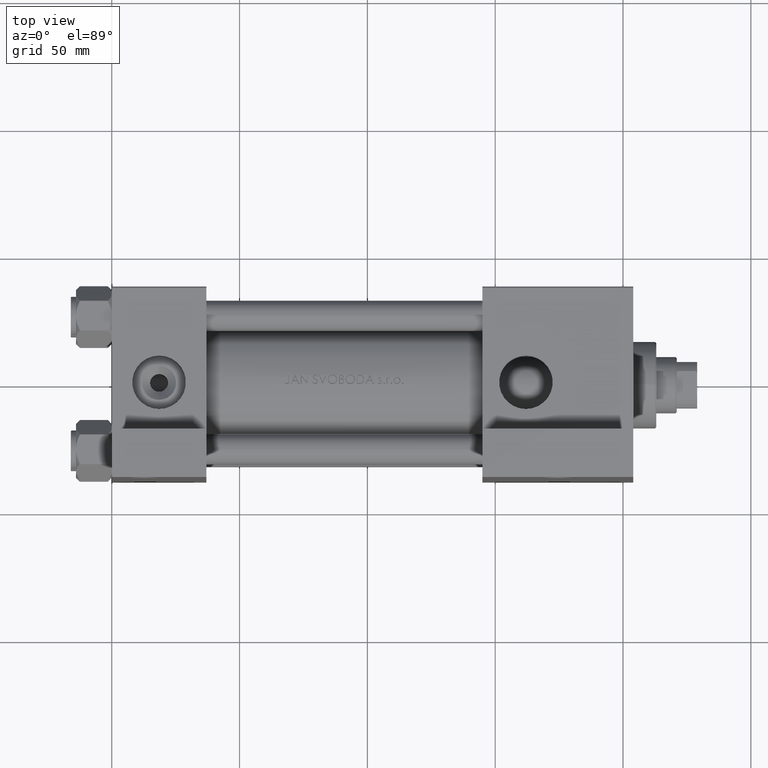
[diagram: clean part render]
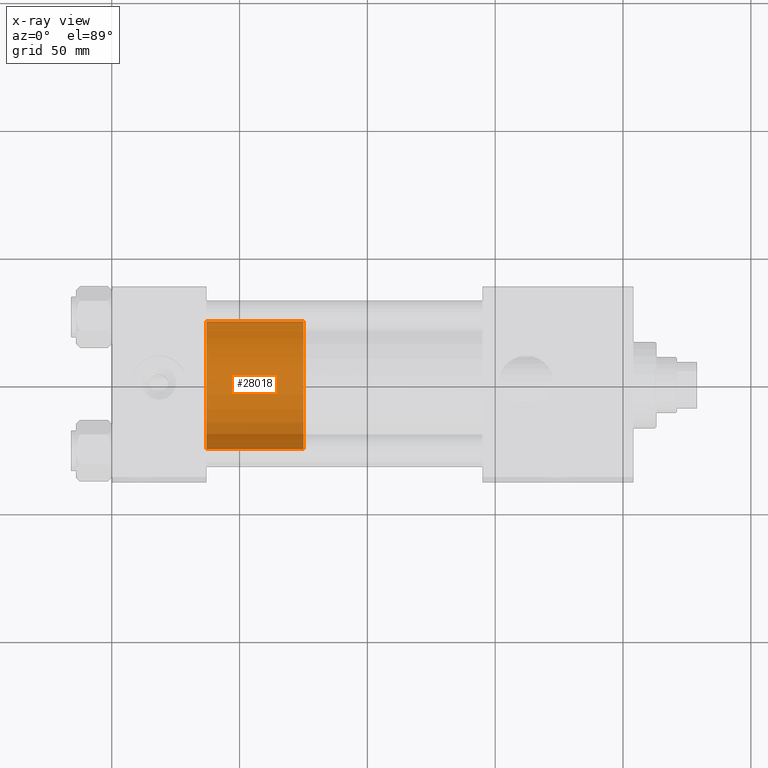
[diagram: x-ray — body ghosted, one internal face saturated and labeled with its STEP entity id]
A machine part, top view, then the same camera in x-ray: the body is ghosted and one INTERNAL B-rep face — a face not visible from any outside direction — is saturated and labeled: STEP entity #28018.
In plain terms, the highlighted cylindrical surface (partial cylindrical patch) has radius 25 mm, axis along (-1, 0, 0).
Its self-contained STEP definition (entity closure, byte-faithful):
#2746 = VECTOR ( 'NONE', #43093, 1000.000000000000000 ) ;
#2951 = VECTOR ( 'NONE', #17350, 1000.000000000000000 ) ;
#5581 = FACE_OUTER_BOUND ( 'NONE', #11995, .T. ) ;
#9056 = EDGE_CURVE ( 'NONE', #20496, #14916, #44815, .T. ) ;
#11995 = EDGE_LOOP ( 'NONE', ( #19832, #32396, #12977, #15417 ) ) ;
#12977 = ORIENTED_EDGE ( 'NONE', *, *, #25680, .T. ) ;
#13200 = DIRECTION ( 'NONE',  ( 1.000000000000000000, 0.000000000000000000, 0.000000000000000000 ) ) ;
#13305 = CYLINDRICAL_SURFACE ( 'NONE', #24323, 25.00000000000000000 ) ;
#14916 = VERTEX_POINT ( 'NONE', #42545 ) ;
#15417 = ORIENTED_EDGE ( 'NONE', *, *, #34772, .F. ) ;
#16328 = CIRCLE ( 'NONE', #40173, 25.00000000000000000 ) ;
#17288 = CARTESIAN_POINT ( 'NONE',  ( 0.000000000000000000, 0.000000000000000000, 38.00000000000000000 ) ) ;
#17350 = DIRECTION ( 'NONE',  ( -0.000000000000000000, -0.000000000000000000, -1.000000000000000000 ) ) ;
#17426 = VERTEX_POINT ( 'NONE', #23738 ) ;
#17819 = AXIS2_PLACEMENT_3D ( 'NONE', #33785, #41009, #30295 ) ;
#19832 = ORIENTED_EDGE ( 'NONE', *, *, #9056, .F. ) ;
#20496 = VERTEX_POINT ( 'NONE', #23366 ) ;
#20961 = LINE ( 'NONE', #38870, #2746 ) ;
#23366 = CARTESIAN_POINT ( 'NONE',  ( 25.00000000000000000, 3.061616997868383043E-15, 38.00000000000000000 ) ) ;
#23738 = CARTESIAN_POINT ( 'NONE',  ( -25.00000000000000000, 0.000000000000000000, 0.000000000000000000 ) ) ;
#24323 = AXIS2_PLACEMENT_3D ( 'NONE', #17288, #24983, #28467 ) ;
#24458 = EDGE_CURVE ( 'NONE', #20496, #44565, #20961, .T. ) ;
#24983 = DIRECTION ( 'NONE',  ( -0.000000000000000000, -0.000000000000000000, -1.000000000000000000 ) ) ;
#25680 = EDGE_CURVE ( 'NONE', #44565, #17426, #16328, .T. ) ;
#28018 = ADVANCED_FACE ( 'NONE', ( #5581 ), #13305, .T. ) ;
#28467 = DIRECTION ( 'NONE',  ( -1.000000000000000000, 0.000000000000000000, 0.000000000000000000 ) ) ;
#30295 = DIRECTION ( 'NONE',  ( 1.000000000000000000, 0.000000000000000000, 0.000000000000000000 ) ) ;
#32396 = ORIENTED_EDGE ( 'NONE', *, *, #24458, .T. ) ;
#33785 = CARTESIAN_POINT ( 'NONE',  ( 0.000000000000000000, 0.000000000000000000, 38.00000000000000000 ) ) ;
#34772 = EDGE_CURVE ( 'NONE', #14916, #17426, #36246, .T. ) ;
#36246 = LINE ( 'NONE', #46721, #2951 ) ;
#38870 = CARTESIAN_POINT ( 'NONE',  ( 25.00000000000000000, 3.061616997868383043E-15, 38.00000000000000000 ) ) ;
#39324 = DIRECTION ( 'NONE',  ( 0.000000000000000000, 0.000000000000000000, 1.000000000000000000 ) ) ;
#40173 = AXIS2_PLACEMENT_3D ( 'NONE', #42543, #39324, #13200 ) ;
#41009 = DIRECTION ( 'NONE',  ( 0.000000000000000000, 0.000000000000000000, 1.000000000000000000 ) ) ;
#42543 = CARTESIAN_POINT ( 'NONE',  ( 0.000000000000000000, 0.000000000000000000, 0.000000000000000000 ) ) ;
#42545 = CARTESIAN_POINT ( 'NONE',  ( -25.00000000000000000, 0.000000000000000000, 38.00000000000000000 ) ) ;
#43093 = DIRECTION ( 'NONE',  ( -0.000000000000000000, -0.000000000000000000, -1.000000000000000000 ) ) ;
#44565 = VERTEX_POINT ( 'NONE', #46683 ) ;
#44815 = CIRCLE ( 'NONE', #17819, 25.00000000000000000 ) ;
#46683 = CARTESIAN_POINT ( 'NONE',  ( 25.00000000000000000, 3.061616997868383043E-15, 0.000000000000000000 ) ) ;
#46721 = CARTESIAN_POINT ( 'NONE',  ( -25.00000000000000000, 0.000000000000000000, 38.00000000000000000 ) ) ;